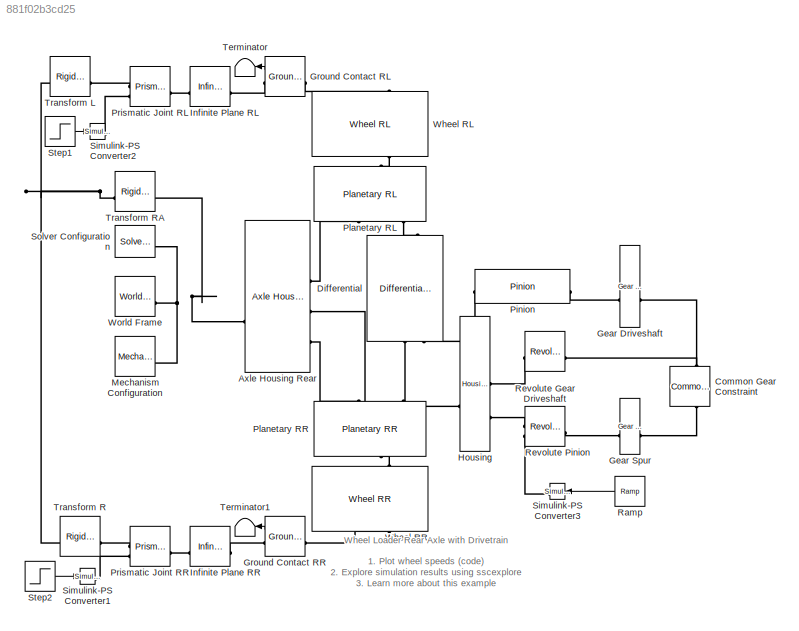
MODEL slx_881f02b3cd25
KIND model
CONFIG AbsTol = 1e-3
CONFIG EnableMultiTasking = on
CONFIG MaxStep = 0.01
CONFIG SolverName = ode23t
CONFIG StopTime = 10
BLOCK [Reference] Axle Housing Rear  REF=sm_wheel_loader_lib/Wheel Loader Vehicle/Driveline/Axle Housing  (lib defined in slx_2f13f0afc9e9, slx_78fdec152d5c)
Rear
  SourceBlock = sm_wheel_loader_lib/Wheel Loader Vehicle/Driveline/Axle Housing\nRear
  Tag = 26328293-4415-CB41-A9FB-B9AA4EE664BB
BLOCK [Reference] Common Gear Constraint  REF=sm_lib/Gears and
Couplings/Gears/Common Gear
Constraint
  NameLocation = left
  SourceBlock = sm_lib/Gears and\nCouplings/Gears/Common Gear\nConstraint
  SourceType = Common Gear\nConstraint
BLOCK [Reference] Differential  REF=sm_wheel_loader_lib/Wheel Loader Vehicle/Driveline/Driveline/Driveline 3D/Differential R  (lib defined in slx_2f13f0afc9e9, slx_78fdec152d5c)
  SourceBlock = sm_wheel_loader_lib/Wheel Loader Vehicle/Driveline/Driveline/Driveline 3D/Differential R
BLOCK [Reference] Gear Driveshaft  REF=sm_wheel_loader_lib/Wheel Loader Vehicle/Driveline/Driveline/Driveline 3D/Gear  (lib defined in slx_2f13f0afc9e9, slx_78fdec152d5c)
Driveshaft
  NameLocation = top
  SourceBlock = sm_wheel_loader_lib/Wheel Loader Vehicle/Driveline/Driveline/Driveline 3D/Gear\nDriveshaft
  Tag = 431AF5D6-54DA-7142-9431-C4596B630D74
BLOCK [Reference] Gear Spur  REF=sm_wheel_loader_lib/Wheel Loader Vehicle/Driveline/Driveline/Driveline 3D/Gear Spur  (lib defined in slx_2f13f0afc9e9, slx_78fdec152d5c)
  SourceBlock = sm_wheel_loader_lib/Wheel Loader Vehicle/Driveline/Driveline/Driveline 3D/Gear Spur
  Tag = 6EB64544-2A1C-0847-BADC-74C9179BE488
BLOCK [Reference] Ground Contact RL  REF=wheel_loader_contact_lib/Ground  (lib defined in slx_c9c847b5a653, slx_ee41a34c1fd8)
Contact Tire
  SourceBlock = wheel_loader_contact_lib/Ground\nContact Tire
BLOCK [Reference] Ground Contact RR  REF=wheel_loader_contact_lib/Ground  (lib defined in slx_c9c847b5a653, slx_ee41a34c1fd8)
Contact Tire
  NameLocation = top
  SourceBlock = wheel_loader_contact_lib/Ground\nContact Tire
BLOCK [Reference] Housing  REF=sm_wheel_loader_lib/Wheel Loader Vehicle/Driveline/Driveline/Driveline 3D/Housing  (lib defined in slx_2f13f0afc9e9, slx_78fdec152d5c)
  SourceBlock = sm_wheel_loader_lib/Wheel Loader Vehicle/Driveline/Driveline/Driveline 3D/Housing
  Tag = FD1DF3FF-DA5A-0743-8F9C-61712535B657
BLOCK [Reference] Infinite Plane RL  REF=sm_lib/Curves and Surfaces/Infinite Plane
  SourceBlock = sm_lib/Curves and Surfaces/Infinite Plane
  SourceType = Infinite Plane
BLOCK [Reference] Infinite Plane RR  REF=sm_lib/Curves and Surfaces/Infinite Plane
  NameLocation = top
  SourceBlock = sm_lib/Curves and Surfaces/Infinite Plane
  SourceType = Infinite Plane
BLOCK [Reference] Mechanism Configuration  REF=sm_lib/Utilities/Mechanism
Configuration
  SourceBlock = sm_lib/Utilities/Mechanism\nConfiguration
  SourceType = Mechanism\nConfiguration
BLOCK [Reference] Pinion  REF=sm_wheel_loader_lib/Wheel Loader Vehicle/Driveline/Driveline/Driveline 3D/Pinion  (lib defined in slx_2f13f0afc9e9, slx_78fdec152d5c)
  SourceBlock = sm_wheel_loader_lib/Wheel Loader Vehicle/Driveline/Driveline/Driveline 3D/Pinion
  Tag = 8E104B94-12D7-814C-ADF4-87AC864C83F8
BLOCK [Reference] Planetary RL  REF=sm_wheel_loader_lib/Wheel Loader Vehicle/Driveline/Driveline/Driveline 3D/Planetary RL  (lib defined in slx_2f13f0afc9e9, slx_78fdec152d5c)
  NameLocation = left
  SourceBlock = sm_wheel_loader_lib/Wheel Loader Vehicle/Driveline/Driveline/Driveline 3D/Planetary RL
BLOCK [Reference] Planetary RR  REF=sm_wheel_loader_lib/Wheel Loader Vehicle/Driveline/Driveline/Driveline 3D/Planetary RR  (lib defined in slx_2f13f0afc9e9, slx_78fdec152d5c)
  NameLocation = left
  SourceBlock = sm_wheel_loader_lib/Wheel Loader Vehicle/Driveline/Driveline/Driveline 3D/Planetary RR
BLOCK [Reference] Prismatic Joint RL  REF=sm_lib/Joints/Prismatic
Joint
  SourceBlock = sm_lib/Joints/Prismatic\nJoint
  SourceType = Prismatic\nJoint
BLOCK [Reference] Prismatic Joint RR  REF=sm_lib/Joints/Prismatic
Joint
  NameLocation = top
  SourceBlock = sm_lib/Joints/Prismatic\nJoint
  SourceType = Prismatic\nJoint
BLOCK [Reference] Ramp  REF=simulink/Sources/Ramp
  SourceBlock = simulink/Sources/Ramp
  SourceType = Ramp
BLOCK [Reference] Revolute Gear Driveshaft  REF=sm_lib/Joints/Revolute Joint
  SourceBlock = sm_lib/Joints/Revolute Joint
  SourceType = Revolute Joint
BLOCK [Reference] Revolute Pinion  REF=sm_lib/Joints/Revolute Joint
  SourceBlock = sm_lib/Joints/Revolute Joint
  SourceType = Revolute Joint
BLOCK [Reference] Simulink-PS Converter1  REF=nesl_utility/Simulink-PS
Converter
  SourceBlock = nesl_utility/Simulink-PS\nConverter
  SourceType = Simulink-PS\nConverter
BLOCK [Reference] Simulink-PS Converter2  REF=nesl_utility/Simulink-PS
Converter
  SourceBlock = nesl_utility/Simulink-PS\nConverter
  SourceType = Simulink-PS\nConverter
BLOCK [Reference] Simulink-PS Converter3  REF=nesl_utility/Simulink-PS
Converter
  SourceBlock = nesl_utility/Simulink-PS\nConverter
  SourceType = Simulink-PS\nConverter
BLOCK [Reference] Solver Configuration  REF=nesl_utility/Solver
Configuration
  SourceBlock = nesl_utility/Solver\nConfiguration
  SourceType = Solver\nConfiguration
BLOCK [Step] Step1
  FinalValue = 0.03
  SampleTime = 0
  Time = 5
BLOCK [Step] Step2
  FinalValue = 0.03*0
  SampleTime = 0
  Time = 8
BLOCK [Terminator] Terminator
  NameLocation = top
BLOCK [Terminator] Terminator1
  NameLocation = top
BLOCK [Reference] Transform L  REF=sm_lib/Frames and
Transforms/Rigid
Transform
  SourceBlock = sm_lib/Frames and\nTransforms/Rigid\nTransform
  SourceType = Rigid\nTransform
BLOCK [Reference] Transform R  REF=sm_lib/Frames and
Transforms/Rigid
Transform
  NameLocation = top
  SourceBlock = sm_lib/Frames and\nTransforms/Rigid\nTransform
  SourceType = Rigid\nTransform
BLOCK [Reference] Transform RA  REF=sm_lib/Frames and
Transforms/Rigid
Transform
  NameLocation = top
  SourceBlock = sm_lib/Frames and\nTransforms/Rigid\nTransform
  SourceType = Rigid\nTransform
BLOCK [Reference] Wheel RL  REF=sm_wheel_loader_lib/Wheel Loader Vehicle/Driveline/Wheel RL  (lib defined in slx_2f13f0afc9e9, slx_78fdec152d5c)
  NameLocation = right
  SourceBlock = sm_wheel_loader_lib/Wheel Loader Vehicle/Driveline/Wheel RL
BLOCK [Reference] Wheel RR  REF=sm_wheel_loader_lib/Wheel Loader Vehicle/Driveline/Wheel RR  (lib defined in slx_2f13f0afc9e9, slx_78fdec152d5c)
  NameLocation = right
  SourceBlock = sm_wheel_loader_lib/Wheel Loader Vehicle/Driveline/Wheel RR
BLOCK [Reference] World Frame  REF=sm_lib/Frames and
Transforms/World Frame
  SourceBlock = sm_lib/Frames and\nTransforms/World Frame
  SourceType = World Frame
ANNOTATION (root): 1. Plot wheel speeds ( code ) 2. Explore simulation results using sscexplore 3. Learn more about this example
ANNOTATION (root): Wheel Loader Rear Axle with Drivetrain
LINE Ground Contact RL:1 -> Terminator:1
LINE Ground Contact RR:1 -> Terminator1:1
LINE Ramp:1 -> Simulink-PS Converter3:1
LINE Step1:1 -> Simulink-PS Converter2:1
LINE Step2:1 -> Simulink-PS Converter1:1
PNET net1: Axle Housing Rear:LConn1 -- Mechanism Configuration:RConn1 -- Solver Configuration:RConn1 -- Transform RA:LConn1 -- World Frame:RConn1
PLINE Axle Housing Rear:RConn1 -- Planetary RL:RConn1
PLINE Axle Housing Rear:RConn2 -- Housing:LConn1
PLINE Axle Housing Rear:RConn3 -- Planetary RR:LConn1
PLINE Common Gear Constraint:LConn1 -- Gear Spur:RConn1
PNET net2: Common Gear Constraint:RConn1 -- Gear Driveshaft:LConn1 -- Revolute Gear Driveshaft:RConn1
PLINE Differential:LConn1 -- Planetary RL:RConn3
PLINE Differential:RConn1 -- Planetary RR:LConn3
PLINE Differential:RConn2 -- Pinion:LConn1
PLINE Gear Driveshaft:RConn1 -- Pinion:RConn1
PLINE Gear Spur:LConn1 -- Revolute Pinion:RConn1
PLINE Ground Contact RL:LConn1 -- Wheel RL:RConn1
PLINE Ground Contact RL:RConn1 -- Infinite Plane RL:RConn1
PLINE Ground Contact RR:LConn1 -- Wheel RR:RConn1
PLINE Ground Contact RR:RConn1 -- Infinite Plane RR:RConn1
PLINE Housing:RConn1 -- Revolute Gear Driveshaft:LConn1
PLINE Housing:RConn2 -- Revolute Pinion:LConn1
PLINE Infinite Plane RL:LConn1 -- Prismatic Joint RL:RConn1
PLINE Infinite Plane RR:LConn1 -- Prismatic Joint RR:RConn1
PLINE Planetary RL:LConn2 -- Wheel RL:LConn1
PLINE Planetary RR:RConn2 -- Wheel RR:LConn1
PLINE Prismatic Joint RL:LConn1 -- Transform L:RConn1
PLINE Prismatic Joint RL:LConn2 -- Simulink-PS Converter2:RConn1
PLINE Prismatic Joint RR:LConn1 -- Transform R:RConn1
PLINE Prismatic Joint RR:LConn2 -- Simulink-PS Converter1:RConn1
PLINE Revolute Pinion:LConn2 -- Simulink-PS Converter3:RConn1
PNET net3: Transform L:LConn1 -- Transform R:LConn1 -- Transform RA:RConn1
note: PNET lines group multi-terminal physical nets as a canonical sorted terminal list (undirected conserving connections); 2-terminal nets keep the pairwise PLINE form
